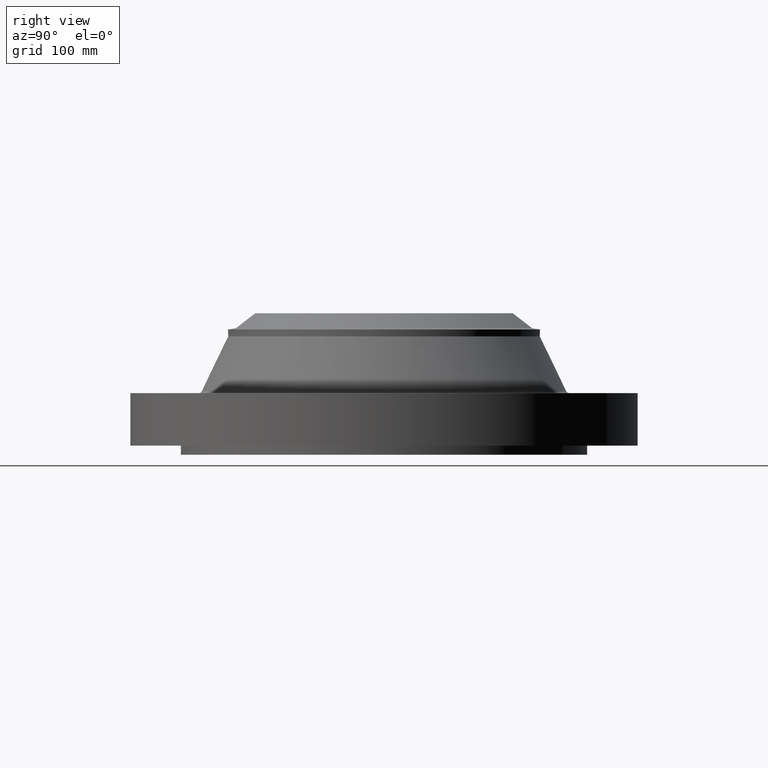
[diagram: clean part render]
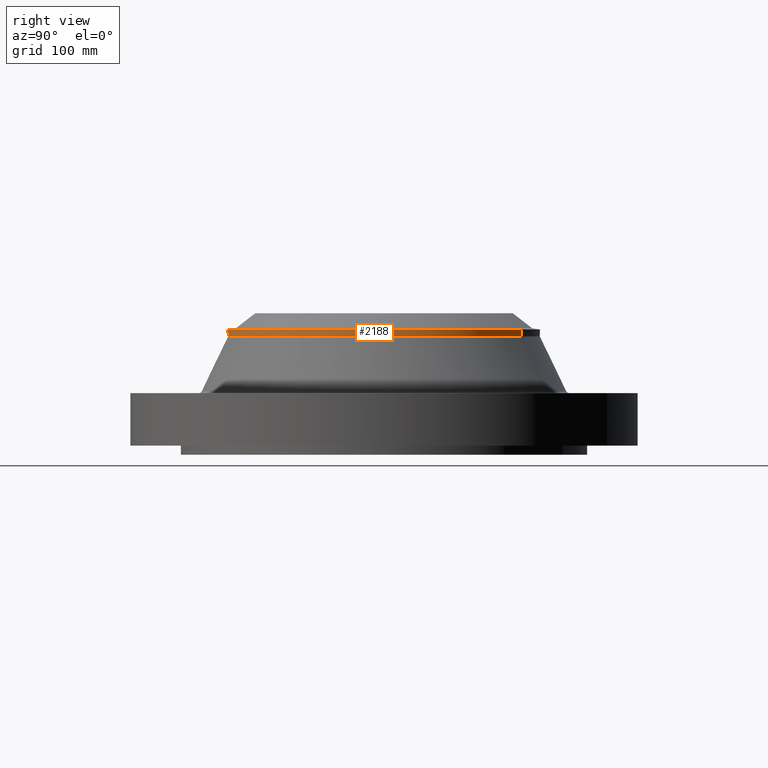
[diagram: same view with one face highlighted and labeled with its STEP entity id]
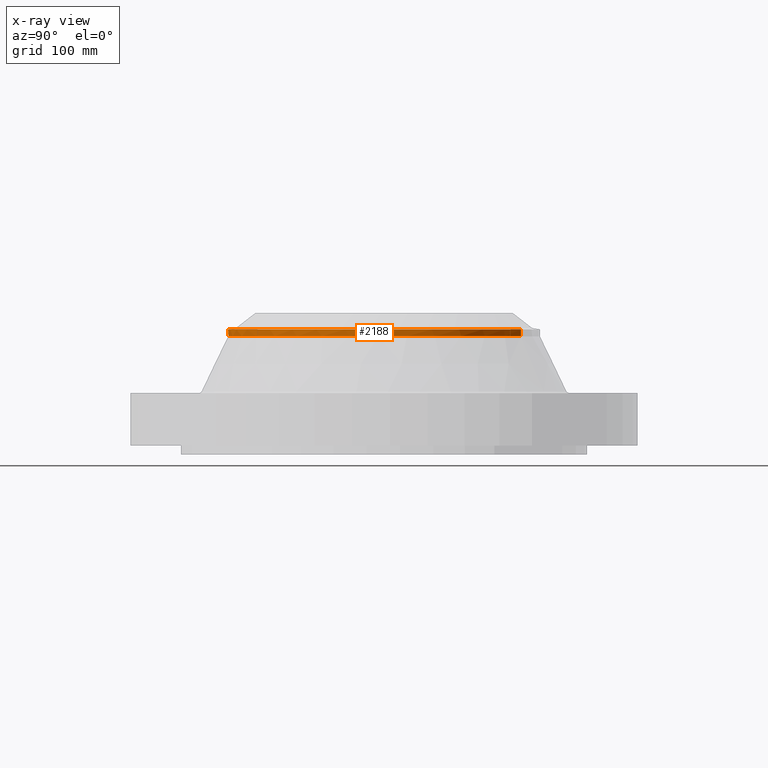
[diagram: x-ray of the same camera — body ghosted, the highlighted face saturated]
A machine part, right view. The second image highlights one B-rep face of the part: STEP entity #2188.
The next image is the same camera in x-ray: the body ghosted, the highlighted face saturated — about 0% of this face is hidden behind the body in this view.
In plain terms, the highlighted cylindrical surface (partial cylindrical patch) has radius 136.525 mm, axis along (-0, 0, -1).
Its self-contained STEP definition (entity closure, byte-faithful):
#1848=AXIS2_PLACEMENT_3D('Circle Axis2P3D',#1846,#1847,$) ;
#2155=AXIS2_PLACEMENT_3D('Cylinder Axis2P3D',#2152,#2153,#2154) ;
#2178=AXIS2_PLACEMENT_3D('Circle Axis2P3D',#2176,#2177,$) ;
#1812=CARTESIAN_POINT('Vertex',(-2.57691227001,-4.71700627018,3.76578537513)) ;
#1819=CARTESIAN_POINT('Vertex',(2.57691227001,4.71700627018,3.76578537513)) ;
#1846=CARTESIAN_POINT('Axis2P3D Location',(0.,0.,3.76578537513)) ;
#2111=CARTESIAN_POINT('Line Origine',(2.57691227001,4.71700627018,3.88389561132)) ;
#2115=CARTESIAN_POINT('Vertex',(2.57691227001,4.71700627018,4.00200584754)) ;
#2118=CARTESIAN_POINT('Line Origine',(-2.57691227001,-4.71700627018,3.88389561132)) ;
#2122=CARTESIAN_POINT('Vertex',(-2.57691227001,-4.71700627018,4.00200584754)) ;
#2152=CARTESIAN_POINT('Axis2P3D Location',(0.,0.,2.12350000001)) ;
#2158=CARTESIAN_POINT('Control Point',(2.57691227001,4.71700627018,4.00200584757)) ;
#2159=CARTESIAN_POINT('Control Point',(3.08200756877,4.44107145086,4.00200584757)) ;
#2160=CARTESIAN_POINT('Control Point',(3.55016911865,4.09752985771,4.00200584757)) ;
#2161=CARTESIAN_POINT('Control Point',(3.96931973831,3.6929598591,4.00200584757)) ;
#2162=CARTESIAN_POINT('Control Point',(4.68910969838,2.78153972249,4.00200584756)) ;
#2163=CARTESIAN_POINT('Control Point',(5.14387042754,1.71290651541,4.00200584756)) ;
#2164=CARTESIAN_POINT('Control Point',(5.2979624918,1.15110605131,4.00200584756)) ;
#2165=CARTESIAN_POINT('Control Point',(5.45203750824,-2.04474147465E-013,4.00200584755)) ;
#2166=CARTESIAN_POINT('Control Point',(5.2979624918,-1.15110605131,4.00200584755)) ;
#2167=CARTESIAN_POINT('Control Point',(5.14387042754,-1.71290651541,4.00200584755)) ;
#2168=CARTESIAN_POINT('Control Point',(4.68910969838,-2.78153972249,4.00200584755)) ;
#2169=CARTESIAN_POINT('Control Point',(3.96931973831,-3.6929598591,4.00200584754)) ;
#2170=CARTESIAN_POINT('Control Point',(3.55016911865,-4.09752985771,4.00200584754)) ;
#2171=CARTESIAN_POINT('Control Point',(3.08200756877,-4.44107145086,4.00200584754)) ;
#2172=CARTESIAN_POINT('Control Point',(2.57691227001,-4.71700627018,4.00200584754)) ;
#2173=CARTESIAN_POINT('Vertex',(2.57691227001,-4.71700627018,4.00200584757)) ;
#2176=CARTESIAN_POINT('Axis2P3D Location',(0.,0.,4.00200584754)) ;
#1847=DIRECTION('Axis2P3D Direction',(-0.,0.,-0.0393700787402)) ;
#2112=DIRECTION('Vector Direction',(0.,0.,-0.0393700787402)) ;
#2119=DIRECTION('Vector Direction',(0.,0.,-0.0393700787402)) ;
#2153=DIRECTION('Axis2P3D Direction',(-0.,0.,-0.0393700787402)) ;
#2154=DIRECTION('Axis2P3D XDirection',(0.0188750212049,0.0345504945626,0.)) ;
#2177=DIRECTION('Axis2P3D Direction',(-0.,0.,-0.0393700787402)) ;
#2113=VECTOR('Line Direction',#2112,0.0393700787402) ;
#2120=VECTOR('Line Direction',#2119,0.0393700787402) ;
#2182=ORIENTED_EDGE('',*,*,#2124,.F.) ;
#2183=ORIENTED_EDGE('',*,*,#1850,.F.) ;
#2184=ORIENTED_EDGE('',*,*,#2117,.T.) ;
#2185=ORIENTED_EDGE('',*,*,#2175,.F.) ;
#2186=ORIENTED_EDGE('',*,*,#2180,.T.) ;
#2188=ADVANCED_FACE('PartBody',(#2187),#2156,.T.) ;
#2157=B_SPLINE_CURVE_WITH_KNOTS('',5,(#2158,#2159,#2160,#2161,#2162,#2163,#2164,#2165,#2166,#2167,#2168,#2169,#2170,#2171,#2172),.UNSPECIFIED.,.F.,.U.,(6,3,3,3,6),(-146.190468516,-73.0952342581,1.42108547152E-014,73.0952342581,146.190468516),.UNSPECIFIED.) ;
#1849=CIRCLE('generated circle',#1848,5.37500000002) ;
#2179=CIRCLE('generated circle',#2178,5.37500000002) ;
#2156=CYLINDRICAL_SURFACE('generated cylinder',#2155,5.37500000002) ;
#1850=EDGE_CURVE('',#1820,#1813,#1849,.T.) ;
#2117=EDGE_CURVE('',#1820,#2116,#2114,.F.) ;
#2124=EDGE_CURVE('',#1813,#2123,#2121,.F.) ;
#2175=EDGE_CURVE('',#2174,#2116,#2157,.F.) ;
#2180=EDGE_CURVE('',#2174,#2123,#2179,.T.) ;
#2181=EDGE_LOOP('',(#2182,#2183,#2184,#2185,#2186)) ;
#2187=FACE_OUTER_BOUND('',#2181,.T.) ;
#2114=LINE('Line',#2111,#2113) ;
#2121=LINE('Line',#2118,#2120) ;
#1813=VERTEX_POINT('',#1812) ;
#1820=VERTEX_POINT('',#1819) ;
#2116=VERTEX_POINT('',#2115) ;
#2123=VERTEX_POINT('',#2122) ;
#2174=VERTEX_POINT('',#2173) ;